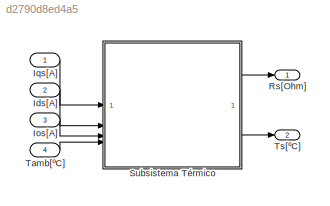
MODEL slx_d2790d8ed4a5
KIND model
CONFIG AbsTol = auto
CONFIG EnableMultiTasking = off
CONFIG FixedStep = auto
CONFIG MaxStep = auto
CONFIG MinStep = auto
CONFIG RelTol = 1e-3
CONFIG SampleTimeConstraint = Unconstrained
CONFIG SolverName = VariableStepAuto
CONFIG StartTime = 0.0
CONFIG StopTime = 10.0
BLOCK [Inport] Ids[A]
  Port = 2
BLOCK [Inport] Ios[A]
  Port = 3
BLOCK [Inport] Iqs[A]
BLOCK [Outport] Rs[Ohm]
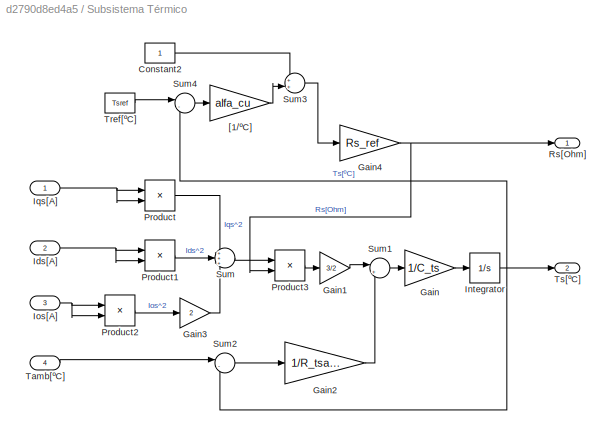
BLOCK [SubSystem] Subsistema Térmico
BLOCK [Constant] Subsistema Térmico/Constant2
BLOCK [Gain] Subsistema Térmico/Gain
  Gain = 1/C_ts
BLOCK [Gain] Subsistema Térmico/Gain1
  Gain = 3/2
BLOCK [Gain] Subsistema Térmico/Gain2
  Gain = 1/R_tsamb
BLOCK [Gain] Subsistema Térmico/Gain3
  Gain = 2
BLOCK [Gain] Subsistema Térmico/Gain4
  Gain = Rs_ref
BLOCK [Inport] Subsistema Térmico/Ids[A]
  Port = 2
BLOCK [Integrator] Subsistema Térmico/Integrator
BLOCK [Inport] Subsistema Térmico/Ios[A]
  Port = 3
BLOCK [Inport] Subsistema Térmico/Iqs[A]
BLOCK [Product] Subsistema Térmico/Product
BLOCK [Product] Subsistema Térmico/Product1
BLOCK [Product] Subsistema Térmico/Product2
BLOCK [Product] Subsistema Térmico/Product3
BLOCK [Outport] Subsistema Térmico/Rs[Ohm]
BLOCK [Sum] Subsistema Térmico/Sum
  Inputs = +++
BLOCK [Sum] Subsistema Térmico/Sum1
  Inputs = |+-
BLOCK [Sum] Subsistema Térmico/Sum2
  Inputs = |-+
BLOCK [Sum] Subsistema Térmico/Sum3
  Inputs = ++|
BLOCK [Sum] Subsistema Térmico/Sum4
  Inputs = |-+
BLOCK [Inport] Subsistema Térmico/Tamb[ºC]
  Port = 4
BLOCK [Constant] Subsistema Térmico/Tref[ºC]
  Value = Tsref
BLOCK [Outport] Subsistema Térmico/Ts[ºC]
  Port = 2
BLOCK [Gain] Subsistema Térmico/[1//ºC]
  Gain = alfa_cu
BLOCK [Inport] Tamb[ºC]
  Port = 4
BLOCK [Outport] Ts[ºC]
  Port = 2
LINE Ids[A]:1 -> Subsistema Térmico:2
LINE Ios[A]:1 -> Subsistema Térmico:3
LINE Iqs[A]:1 -> Subsistema Térmico:1
LINE Subsistema Térmico/Constant2:1 -> Subsistema Térmico/Sum3:1
LINE Subsistema Térmico/Gain1:1 -> Subsistema Térmico/Sum1:1
LINE Subsistema Térmico/Gain2:1 -> Subsistema Térmico/Sum1:2
LINE Subsistema Térmico/Gain3:1 -> Subsistema Térmico/Sum:3
NET Subsistema Térmico/Gain4:1 -> Subsistema Térmico/Product3:2, Subsistema Térmico/Rs[Ohm]:1
LINE Subsistema Térmico/Gain:1 -> Subsistema Térmico/Integrator:1
NET Subsistema Térmico/Ids[A]:1 -> Subsistema Térmico/Product1:1, Subsistema Térmico/Product1:2
NET Subsistema Térmico/Integrator:1 -> Subsistema Térmico/Sum2:2, Subsistema Térmico/Sum4:2, Subsistema Térmico/Ts[ºC]:1
NET Subsistema Térmico/Ios[A]:1 -> Subsistema Térmico/Product2:1, Subsistema Térmico/Product2:2
NET Subsistema Térmico/Iqs[A]:1 -> Subsistema Térmico/Product:1, Subsistema Térmico/Product:2
LINE Subsistema Térmico/Product1:1 -> Subsistema Térmico/Sum:2
LINE Subsistema Térmico/Product2:1 -> Subsistema Térmico/Gain3:1
LINE Subsistema Térmico/Product3:1 -> Subsistema Térmico/Gain1:1
LINE Subsistema Térmico/Product:1 -> Subsistema Térmico/Sum:1
LINE Subsistema Térmico/Sum1:1 -> Subsistema Térmico/Gain:1
LINE Subsistema Térmico/Sum2:1 -> Subsistema Térmico/Gain2:1
LINE Subsistema Térmico/Sum3:1 -> Subsistema Térmico/Gain4:1
LINE Subsistema Térmico/Sum4:1 -> Subsistema Térmico/[1//ºC]:1
LINE Subsistema Térmico/Sum:1 -> Subsistema Térmico/Product3:1
LINE Subsistema Térmico/Tamb[ºC]:1 -> Subsistema Térmico/Sum2:1
LINE Subsistema Térmico/Tref[ºC]:1 -> Subsistema Térmico/Sum4:1
LINE Subsistema Térmico/[1//ºC]:1 -> Subsistema Térmico/Sum3:2
LINE Subsistema Térmico:1 -> Rs[Ohm]:1
LINE Subsistema Térmico:2 -> Ts[ºC]:1
LINE Tamb[ºC]:1 -> Subsistema Térmico:4
note: NET lines group one-source signal fan-out (src -> all destinations, sorted); 1:1 wires keep LINE
